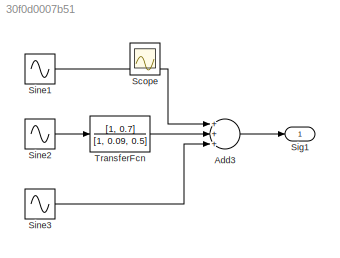
MODEL slx_30f0d0007b51
KIND model
CONFIG AbsTol = auto
CONFIG FixedStep = auto
CONFIG MaxStep = 0.1
CONFIG MinStep = auto
CONFIG RelTol = 1e-3
CONFIG SampleTimeConstraint = Unconstrained
CONFIG Solver = ode45
CONFIG SolverMode = Auto
CONFIG SolverName = ode45
CONFIG StartTime = 0.0
CONFIG StopTime = 10
BLOCK [Sum] Add3
  InputSameDT = off
  Inputs = +++
  OutDataTypeStr = Inherit: Inherit via internal rule
  Ports = [3, 1]
  SaturateOnIntegerOverflow = off
BLOCK [Scope] Scope
  IOType = viewer
  Ports = []
  ScopeSpecificationString = Simulink.scopes.TimeScopeBlockCfg('CurrentConfiguration', extmgr.ConfigurationSet(extmgr.Configuration('Core','General UI',true),extmgr.Configuration('Core','Source UI',true),extmgr.Configuration('Sources','WiredSimulink',true),extmgr.Configuration('Visuals','Time Domain',true,'SerializedDisplays',{struct('MinYLimReal','-9.48645','MaxYLimReal','9.83709','YLabelReal','','MinYLimMag','0.00000','MaxY...<+1380ch>
BLOCK [Outport] Sig1
  IconDisplay = Port number
BLOCK [Sin] Sine1
  Amplitude = 0.1
  Frequency = 1.0472
  Ports = [0, 1]
BLOCK [Sin] Sine2
  Amplitude = 2
  Ports = [0, 1]
BLOCK [Sin] Sine3
  Amplitude = 0.3
  Frequency = 0.5236
  Ports = [0, 1]
BLOCK [TransferFcn] TransferFcn
  Denominator = [1, 0.09, 0.5]
  Numerator = [1, 0.7]
LINE Add3:1 -> Sig1:1
LINE Sine1:1 -> Add3:1
LINE Sine2:1 -> TransferFcn:1
LINE Sine3:1 -> Add3:3
LINE TransferFcn:1 -> Add3:2
